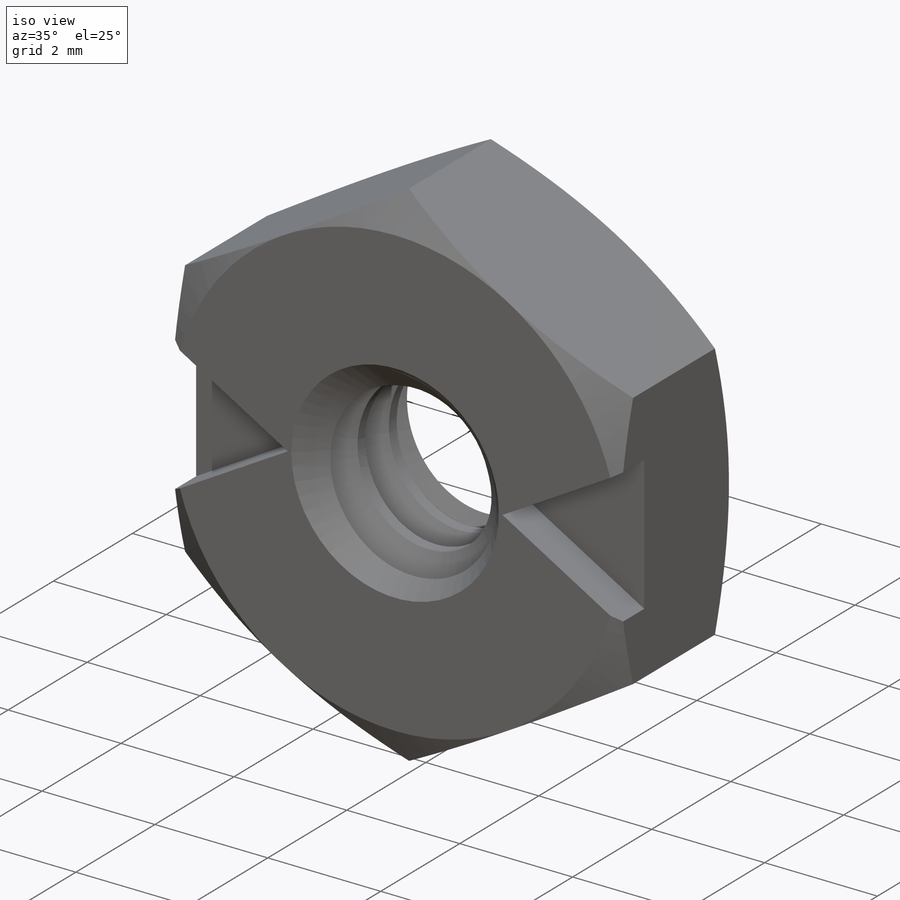
[diagram: iso view]
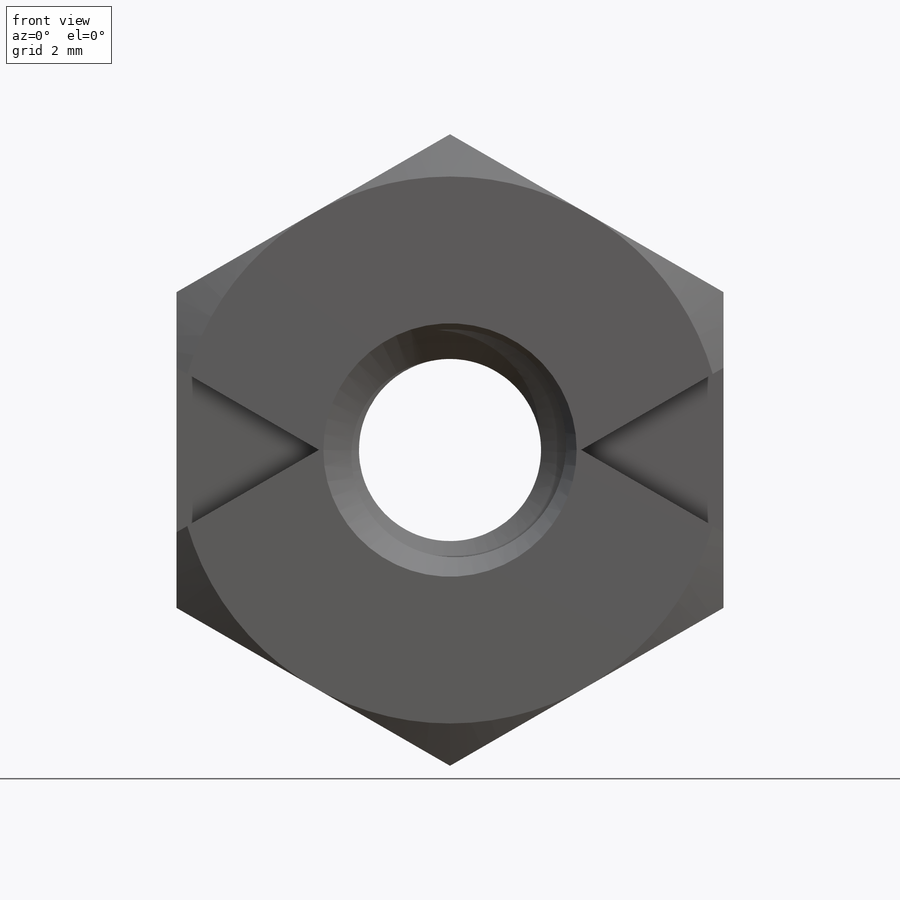
[diagram: front view]
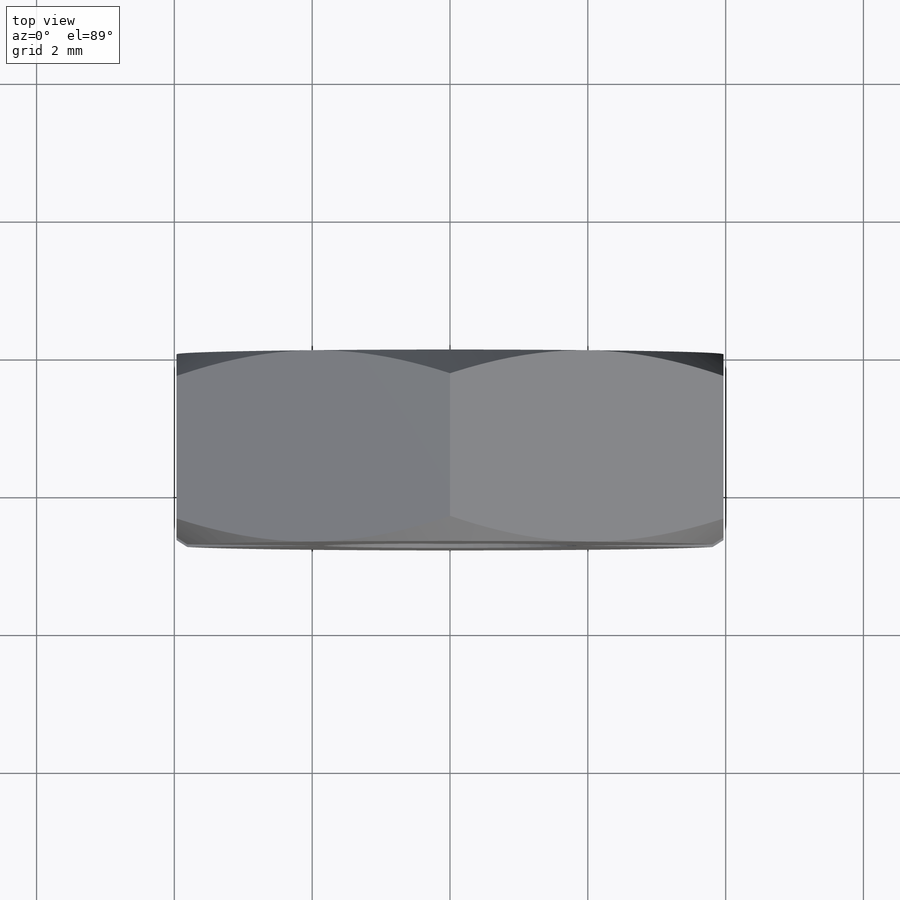
[diagram: top view]
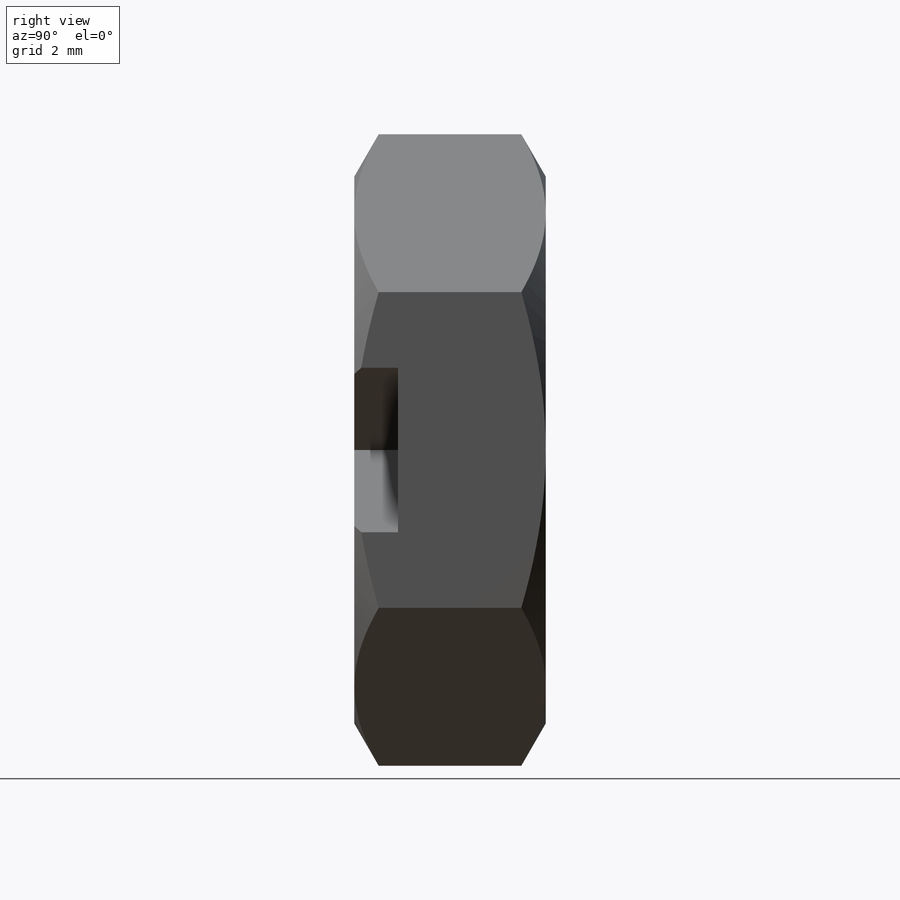
[diagram: right view]
SOLIDWORKS PART (.sldprt)
format: sldprt  version: not decoded by parser v0  size: 492,544 bytes
history: native  units: mm
features: sketch x9, cut_extrude x6, material x1, extrude x1, helix x1, sweep x1 (+14 scaffold rows collapsed)
feature tree (33):
  scaffold x14  (default folders/planes/origin — collapsed)
  material  "Material <not specified>"
  sketch  "Sketch1"  dims[Hex=7.9375mm]
  extrude  "Extrude1"  Depth=2.778125mm Height=2.778125mm
  sketch  "Sketch2"
  cut_extrude  "Cut-Extrude1"  [1 undecoded]
  sketch  "Sketch3"  dims[D1=0.0mm]
  cut_extrude  "Cut-Extrude2"  [1 undecoded]
  sketch  "Sketch4"  dims[Thread Dia=3.5052mm]
  cut_extrude  "Cut-Extrude3"  [1 undecoded]
  sketch  "Sketch5"
  helix  "Helix/Spiral1"  Pitch=3.571875mm pitch=0.79375mm
  sketch  "Sketch6"  dims[c1.D1=~2.869972mm c2.D1=60.0deg c2.D2=~0.198437mm c2.D3=1.5875mm c2.D4=4.7625mm c3.D1=~1.953846mm c3.D2=~0.244231mm c3.D3=~4.457664mm c4.D3=0.0625deg c5.D3=~4.457664mm c6.D3=60.0deg c7.D3=~0.863401mm c8.D3=60.0deg c8.D1=~0.79375mm c8.D2=~0.099219mm]
  sweep  "Sweep1"
  sketch  "Sketch7"  dims[D1=0.0mm]
  cut_extrude  "Cut-Extrude4"  [1 undecoded]
  sketch  "Sketch8"  dims[D1=0.0mm]
  cut_extrude  "Cut-Extrude5"  [1 undecoded]
  sketch  "Sketch9"  dims[c1.D2=~13.12302mm c1.D1=~2.179334mm c2.D1=60.0deg c2.D2=0.0635mm]
  cut_extrude  "Cut-Extrude6"  Depth=0.635mm
decode coverage: 10 of 18 modeling features carry decoded parameters
note: ~ marks probable driven/reference dimensions
note: 5 parameter values undecoded
summary: no parameter record found for 5 features
note: suppression state not decoded; provenance and decode notes live in map.json
